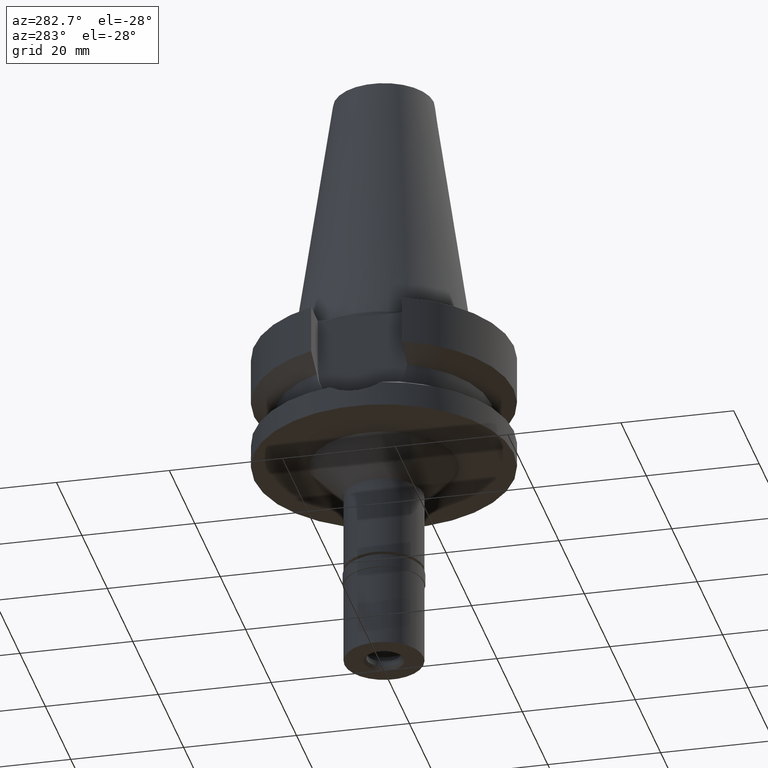
[diagram: clean part render]
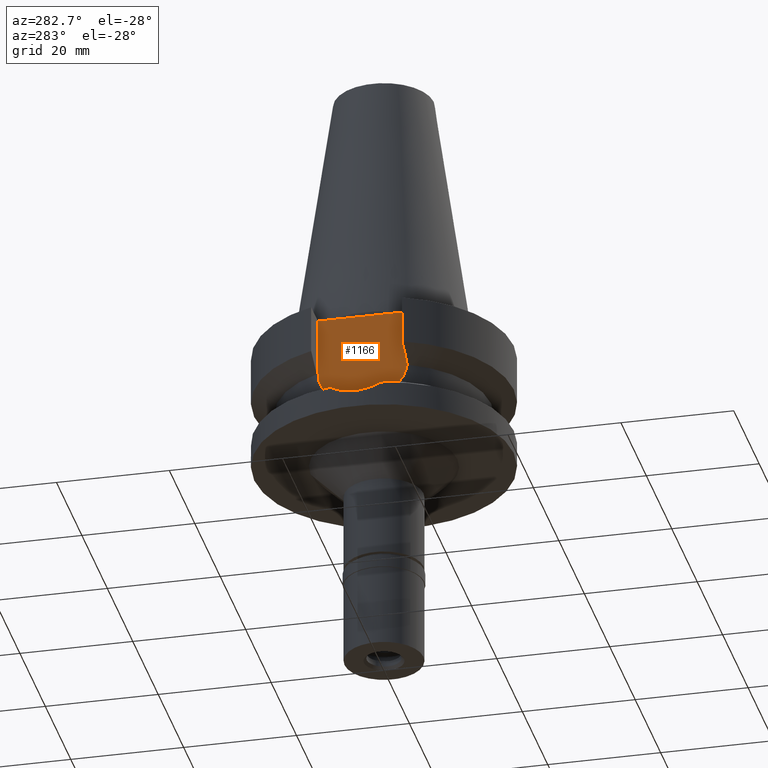
[diagram: same view with one face highlighted and labeled with its STEP entity id]
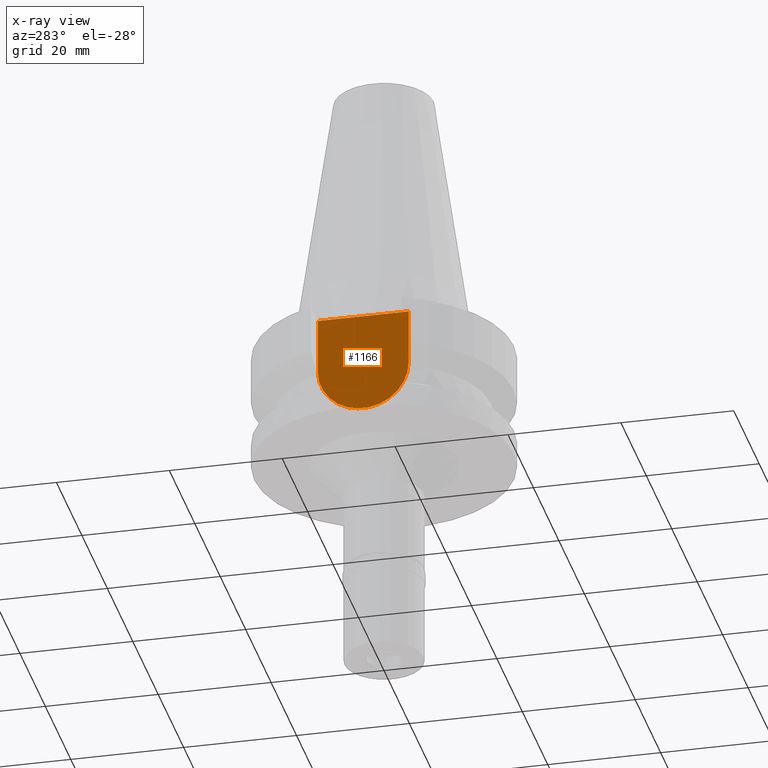
[diagram: x-ray of the same camera — body ghosted, the highlighted face saturated]
A machine part, auxiliary view. The second image highlights one B-rep face of the part: STEP entity #1166.
The next image is the same camera in x-ray: the body ghosted, the highlighted face saturated — about 0% of this face is hidden behind the body in this view.
In plain terms, the highlighted planar face has unit normal (-1, 0, 0).
Its self-contained STEP definition (entity closure, byte-faithful):
#63 = DIRECTION ( 'NONE',  ( -1.000000000000000000, 0.0000000000000000000, 0.0000000000000000000 ) ) ;
#106 = LINE ( 'NONE', #1970, #2672 ) ;
#109 = CARTESIAN_POINT ( 'NONE',  ( -16.29999999999999716, -8.050000000000000711, -1.000000000000000000 ) ) ;
#198 = DIRECTION ( 'NONE',  ( 1.000000000000000000, 0.0000000000000000000, 0.0000000000000000000 ) ) ;
#416 = EDGE_CURVE ( 'NONE', #2183, #1857, #106, .T. ) ;
#567 = CARTESIAN_POINT ( 'NONE',  ( -16.29999999999999716, 1.981478521019999946E-14, -10.94999999999999929 ) ) ;
#630 = VERTEX_POINT ( 'NONE', #2330 ) ;
#789 = AXIS2_PLACEMENT_3D ( 'NONE', #1643, #63, #1873 ) ;
#800 = DIRECTION ( 'NONE',  ( 0.0000000000000000000, 0.0000000000000000000, 1.000000000000000000 ) ) ;
#812 = LINE ( 'NONE', #1711, #1947 ) ;
#832 = ORIENTED_EDGE ( 'NONE', *, *, #1773, .T. ) ;
#905 = CARTESIAN_POINT ( 'NONE',  ( -16.29999999999999716, 8.050000000000000711, -10.94999999999999929 ) ) ;
#963 = PLANE ( 'NONE',  #789 ) ;
#1166 = ADVANCED_FACE ( 'NONE', ( #1859 ), #963, .T. ) ;
#1298 = CARTESIAN_POINT ( 'NONE',  ( -16.29999999999999716, -8.050000000000000711, -1.000000000000000000 ) ) ;
#1312 = LINE ( 'NONE', #1298, #2239 ) ;
#1400 = VERTEX_POINT ( 'NONE', #109 ) ;
#1453 = EDGE_CURVE ( 'NONE', #630, #2183, #1760, .T. ) ;
#1462 = ORIENTED_EDGE ( 'NONE', *, *, #1453, .F. ) ;
#1643 = CARTESIAN_POINT ( 'NONE',  ( -16.29999999999999716, 2.249676170033999711E-14, 0.0000000000000000000 ) ) ;
#1654 = ORIENTED_EDGE ( 'NONE', *, *, #2016, .F. ) ;
#1711 = CARTESIAN_POINT ( 'NONE',  ( -16.29999999999999716, -8.050000000000000711, -1.000000000000000000 ) ) ;
#1746 = DIRECTION ( 'NONE',  ( 0.0000000000000000000, 0.0000000000000000000, -1.000000000000000000 ) ) ;
#1760 = CIRCLE ( 'NONE', #1799, 8.050000000000000711 ) ;
#1773 = EDGE_CURVE ( 'NONE', #1400, #1857, #812, .T. ) ;
#1799 = AXIS2_PLACEMENT_3D ( 'NONE', #567, #198, #1997 ) ;
#1857 = VERTEX_POINT ( 'NONE', #2488 ) ;
#1859 = FACE_OUTER_BOUND ( 'NONE', #2871, .T. ) ;
#1873 = DIRECTION ( 'NONE',  ( 0.0000000000000000000, 0.0000000000000000000, 1.000000000000000000 ) ) ;
#1947 = VECTOR ( 'NONE', #2611, 1000.000000000000000 ) ;
#1970 = CARTESIAN_POINT ( 'NONE',  ( -16.29999999999999716, 8.050000000000000711, -10.94999999999999929 ) ) ;
#1997 = DIRECTION ( 'NONE',  ( 0.0000000000000000000, 0.0000000000000000000, -1.000000000000000000 ) ) ;
#2016 = EDGE_CURVE ( 'NONE', #1400, #630, #1312, .T. ) ;
#2183 = VERTEX_POINT ( 'NONE', #905 ) ;
#2239 = VECTOR ( 'NONE', #1746, 1000.000000000000000 ) ;
#2330 = CARTESIAN_POINT ( 'NONE',  ( -16.29999999999999716, -8.050000000000000711, -10.94999999999999929 ) ) ;
#2488 = CARTESIAN_POINT ( 'NONE',  ( -16.29999999999999716, 8.050000000000000711, -1.000000000000000000 ) ) ;
#2590 = ORIENTED_EDGE ( 'NONE', *, *, #416, .F. ) ;
#2611 = DIRECTION ( 'NONE',  ( 0.0000000000000000000, 1.000000000000000000, 0.0000000000000000000 ) ) ;
#2672 = VECTOR ( 'NONE', #800, 1000.000000000000000 ) ;
#2871 = EDGE_LOOP ( 'NONE', ( #2590, #1462, #1654, #832 ) ) ;